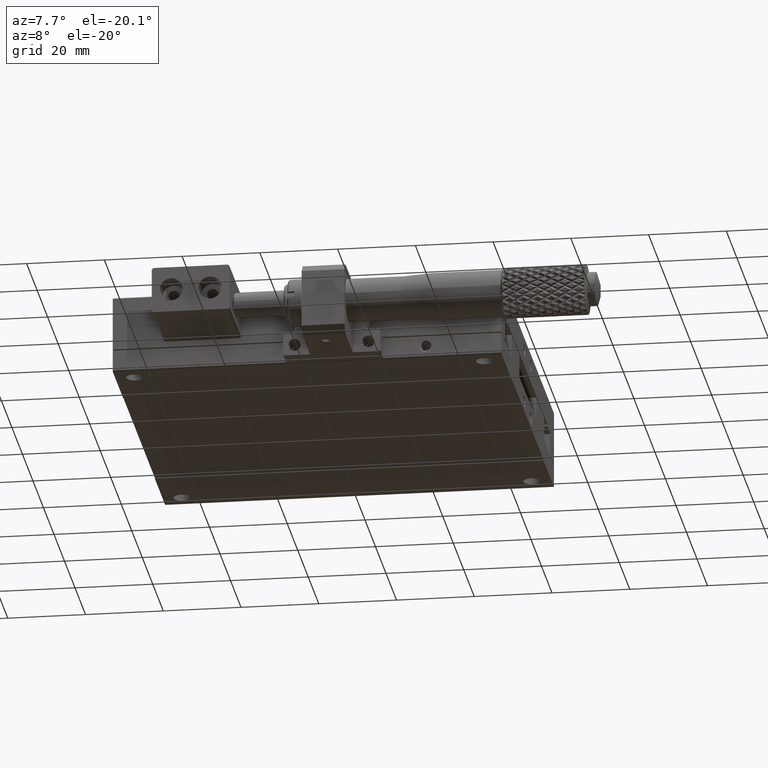
[diagram: clean part render]
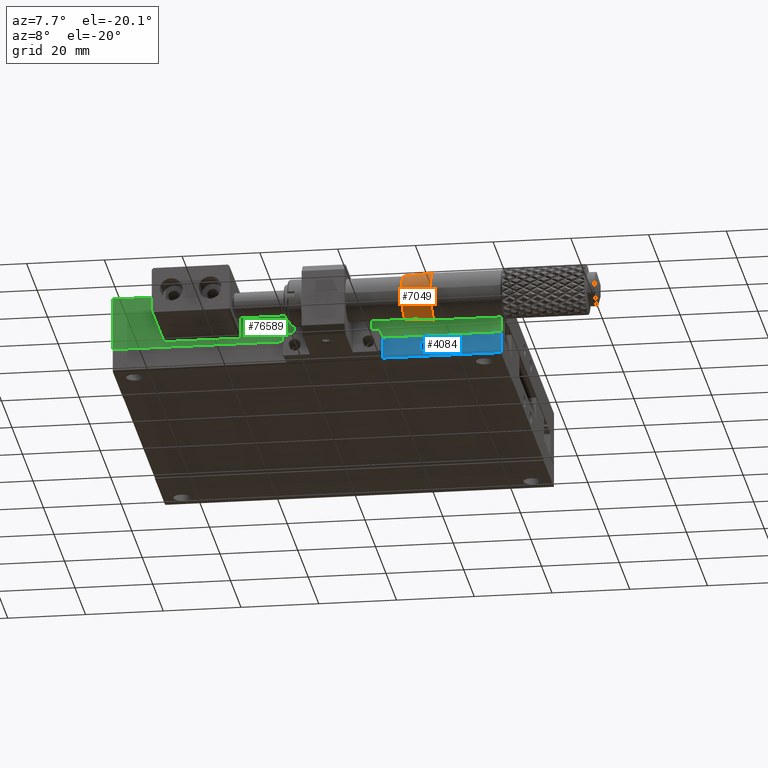
[diagram: same view with three faces highlighted in distinct colors, each labeled with its STEP entity id]
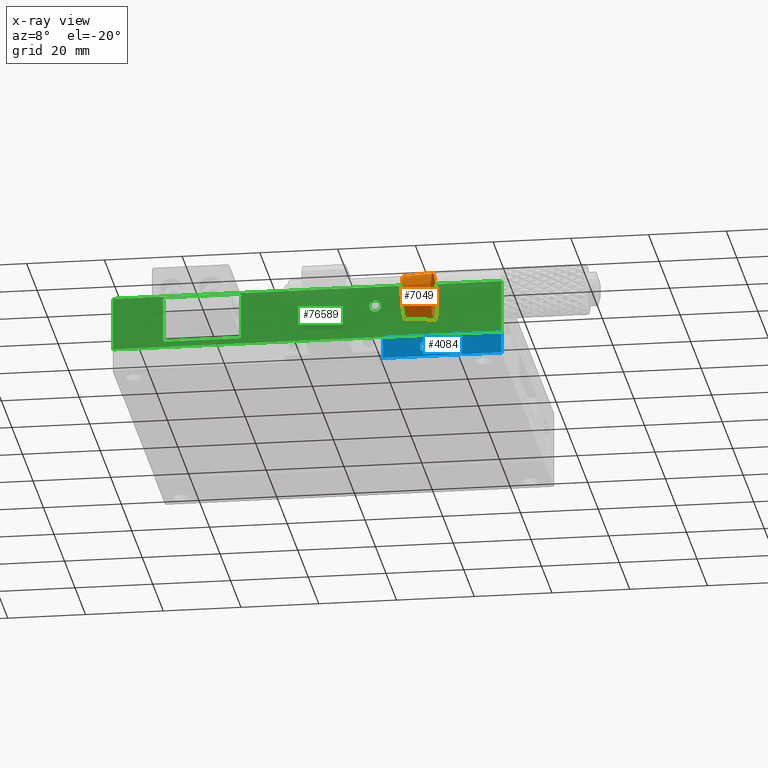
[diagram: x-ray of the same camera — body ghosted, the three highlighted faces saturated]
A machine part, auxiliary view with three faces highlighted in distinct colors.
The next image is the same camera in x-ray (body ghosted, the three faces saturated) — at least one of them is partly hidden behind the body in this view.
Their STEP definitions:

[orange] entity #7049 — the highlighted conical surface has half-angle 3.814 deg.
#596 = DIRECTION ( 'NONE',  ( 1.000000000000000000, 0.000000000000000000, 0.000000000000000000 ) ) ;
#7049 = ADVANCED_FACE ( 'NONE', ( #56556, #44701 ), #25448, .T. ) ;
#7160 = CIRCLE ( 'NONE', #33280, 6.000000000000005329 ) ;
#14877 = EDGE_CURVE ( 'NONE', #69432, #69432, #7160, .T. ) ;
#23201 = DIRECTION ( 'NONE',  ( 0.000000000000000000, 1.000000000000000000, 0.000000000000000000 ) ) ;
#25448 = CONICAL_SURFACE ( 'NONE', #56698, 6.000000000170802927, 0.06656816379978104659 ) ;
#26193 = CARTESIAN_POINT ( 'NONE',  ( 34.50028554974600326, -70.50000000000004263, 11.00000000000000000 ) ) ;
#27686 = VERTEX_POINT ( 'NONE', #46059 ) ;
#28673 = ORIENTED_EDGE ( 'NONE', *, *, #41103, .T. ) ;
#31642 = CARTESIAN_POINT ( 'NONE',  ( 34.50028554961136251, -64.50000000000004263, 11.00000000000000000 ) ) ;
#33280 = AXIS2_PLACEMENT_3D ( 'NONE', #44561, #69463, #41244 ) ;
#33834 = DIRECTION ( 'NONE',  ( 1.000000000000000000, 6.123233995736759873E-17, 0.000000000000000000 ) ) ;
#40191 = CIRCLE ( 'NONE', #74157, 5.499999999997888800 ) ;
#41103 = EDGE_CURVE ( 'NONE', #27686, #27686, #40191, .T. ) ;
#41244 = DIRECTION ( 'NONE',  ( 0.000000000000000000, -1.000000000000000000, 0.000000000000000000 ) ) ;
#44561 = CARTESIAN_POINT ( 'NONE',  ( 34.50028554974600326, -64.50000000000004263, 11.00000000000000000 ) ) ;
#44701 = FACE_OUTER_BOUND ( 'NONE', #52043, .T. ) ;
#46059 = CARTESIAN_POINT ( 'NONE',  ( 27.00028554973187056, -59.00000000000215294, 11.00000000000000000 ) ) ;
#50039 = DIRECTION ( 'NONE',  ( 0.000000000000000000, 0.000000000000000000, -1.000000000000000000 ) ) ;
#52043 = EDGE_LOOP ( 'NONE', ( #65965 ) ) ;
#56556 = FACE_BOUND ( 'NONE', #66380, .T. ) ;
#56698 = AXIS2_PLACEMENT_3D ( 'NONE', #31642, #596, #50039 ) ;
#65965 = ORIENTED_EDGE ( 'NONE', *, *, #14877, .F. ) ;
#66380 = EDGE_LOOP ( 'NONE', ( #28673 ) ) ;
#69432 = VERTEX_POINT ( 'NONE', #26193 ) ;
#69463 = DIRECTION ( 'NONE',  ( 1.000000000000000000, 6.123233995736759873E-17, -0.000000000000000000 ) ) ;
#74157 = AXIS2_PLACEMENT_3D ( 'NONE', #77970, #33834, #23201 ) ;
#77970 = CARTESIAN_POINT ( 'NONE',  ( 27.00028554973187056, -64.50000000000004263, 11.00000000000000000 ) ) ;

[blue] entity #4084 — the highlighted planar face has unit normal (-0, 1, 0).
#964 = CARTESIAN_POINT ( 'NONE',  ( 30.50000000000000000, -49.99999999990905053, 3.000000000000009770 ) ) ;
#1626 = VERTEX_POINT ( 'NONE', #40723 ) ;
#2072 = AXIS2_PLACEMENT_3D ( 'NONE', #964, #44658, #33634 ) ;
#2134 = PLANE ( 'NONE',  #54215 ) ;
#3488 = DIRECTION ( 'NONE',  ( -1.000000000000000000, -0.000000000000000000, -0.000000000000000000 ) ) ;
#4084 = ADVANCED_FACE ( 'NONE', ( #58067, #58479 ), #2134, .F. ) ;
#4745 = EDGE_CURVE ( 'NONE', #46455, #1626, #59415, .T. ) ;
#8268 = DIRECTION ( 'NONE',  ( -0.000000000000000000, 1.000000000000000000, 0.000000000000000000 ) ) ;
#8415 = VERTEX_POINT ( 'NONE', #69688 ) ;
#8685 = EDGE_CURVE ( 'NONE', #8415, #33235, #70219, .T. ) ;
#11338 = EDGE_LOOP ( 'NONE', ( #41385 ) ) ;
#11899 = ORIENTED_EDGE ( 'NONE', *, *, #8685, .T. ) ;
#13903 = CARTESIAN_POINT ( 'NONE',  ( 50.00000000000000000, -50.00000000000000000, 5.700000000000009948 ) ) ;
#15265 = VECTOR ( 'NONE', #3488, 1000.000000000000000 ) ;
#20965 = EDGE_CURVE ( 'NONE', #1626, #31213, #70210, .T. ) ;
#22817 = DIRECTION ( 'NONE',  ( -0.000000000000000000, -0.000000000000000000, 1.000000000000000000 ) ) ;
#26152 = DIRECTION ( 'NONE',  ( -1.000000000000000000, -0.000000000000000000, -0.000000000000000000 ) ) ;
#29186 = CARTESIAN_POINT ( 'NONE',  ( 50.00000000000000000, -50.00000000000000000, 0.3000000000000294098 ) ) ;
#31213 = VERTEX_POINT ( 'NONE', #36594 ) ;
#31816 = CARTESIAN_POINT ( 'NONE',  ( 19.50000000000000355, -50.00000000000000000, 0.5000000000000299760 ) ) ;
#32922 = CARTESIAN_POINT ( 'NONE',  ( 50.00000000000000000, -50.00000000000000000, 0.3000000000000294098 ) ) ;
#33170 = CARTESIAN_POINT ( 'NONE',  ( 50.00000000000000000, -50.00000000000000000, 5.700000000000009948 ) ) ;
#33235 = VERTEX_POINT ( 'NONE', #42229 ) ;
#33399 = EDGE_CURVE ( 'NONE', #62781, #62781, #77797, .T. ) ;
#33634 = DIRECTION ( 'NONE',  ( -1.000000000000000000, 0.000000000000000000, 0.000000000000000000 ) ) ;
#36594 = CARTESIAN_POINT ( 'NONE',  ( 19.50000000000000355, -50.00000000000000000, 0.5000000000000307532 ) ) ;
#36616 = LINE ( 'NONE', #42354, #48166 ) ;
#40723 = CARTESIAN_POINT ( 'NONE',  ( 19.29999999999999716, -50.00000000000000000, 0.3000000000000302980 ) ) ;
#41385 = ORIENTED_EDGE ( 'NONE', *, *, #33399, .F. ) ;
#42229 = CARTESIAN_POINT ( 'NONE',  ( 19.50000000000000355, -50.00000000000000000, 5.700000000000009948 ) ) ;
#42354 = CARTESIAN_POINT ( 'NONE',  ( 50.00000000000000000, -50.00000000000000000, 5.700000000000009948 ) ) ;
#44489 = EDGE_CURVE ( 'NONE', #46455, #8415, #36616, .T. ) ;
#44658 = DIRECTION ( 'NONE',  ( 0.000000000000000000, -1.000000000000000000, 0.000000000000000000 ) ) ;
#46455 = VERTEX_POINT ( 'NONE', #32922 ) ;
#48166 = VECTOR ( 'NONE', #22817, 1000.000000000000000 ) ;
#49923 = VECTOR ( 'NONE', #57604, 1000.000000000000000 ) ;
#51367 = VECTOR ( 'NONE', #26152, 1000.000000000000000 ) ;
#52620 = EDGE_LOOP ( 'NONE', ( #71795, #73305, #53453, #76700, #11899 ) ) ;
#53453 = ORIENTED_EDGE ( 'NONE', *, *, #4745, .F. ) ;
#53693 = EDGE_CURVE ( 'NONE', #31213, #33235, #69444, .T. ) ;
#54215 = AXIS2_PLACEMENT_3D ( 'NONE', #33170, #8268, #64197 ) ;
#56562 = VECTOR ( 'NONE', #56735, 1000.000000000000000 ) ;
#56735 = DIRECTION ( 'NONE',  ( 0.7071067811865610064, -0.000000000000000000, 0.7071067811865340280 ) ) ;
#57604 = DIRECTION ( 'NONE',  ( -0.000000000000000000, -0.000000000000000000, 1.000000000000000000 ) ) ;
#58067 = FACE_OUTER_BOUND ( 'NONE', #52620, .T. ) ;
#58479 = FACE_BOUND ( 'NONE', #11338, .T. ) ;
#59415 = LINE ( 'NONE', #29186, #15265 ) ;
#62387 = CARTESIAN_POINT ( 'NONE',  ( 28.99999999995088373, -49.99999999990905053, 3.000000000000009770 ) ) ;
#62781 = VERTEX_POINT ( 'NONE', #62387 ) ;
#63327 = CARTESIAN_POINT ( 'NONE',  ( 19.50000000000000355, -50.00000000000000000, 5.700000000000009948 ) ) ;
#64197 = DIRECTION ( 'NONE',  ( 1.000000000000000000, 0.000000000000000000, 0.000000000000000000 ) ) ;
#69444 = LINE ( 'NONE', #63327, #49923 ) ;
#69688 = CARTESIAN_POINT ( 'NONE',  ( 50.00000000000000000, -50.00000000000000000, 5.700000000000009948 ) ) ;
#70210 = LINE ( 'NONE', #31816, #56562 ) ;
#70219 = LINE ( 'NONE', #13903, #51367 ) ;
#71795 = ORIENTED_EDGE ( 'NONE', *, *, #53693, .F. ) ;
#73305 = ORIENTED_EDGE ( 'NONE', *, *, #20965, .F. ) ;
#76700 = ORIENTED_EDGE ( 'NONE', *, *, #44489, .T. ) ;
#77797 = CIRCLE ( 'NONE', #2072, 1.500000000049114934 ) ;

[green] entity #76589 — the highlighted planar face has unit normal (0, -1, 0).
#251 = CARTESIAN_POINT ( 'NONE',  ( -50.00000000000000000, -50.00000000000000000, 6.000000000000000000 ) ) ;
#555 = EDGE_CURVE ( 'NONE', #75678, #25751, #34847, .T. ) ;
#1201 = EDGE_LOOP ( 'NONE', ( #49271, #78222, #60644, #48780 ) ) ;
#2048 = EDGE_CURVE ( 'NONE', #36295, #8788, #51629, .T. ) ;
#2732 = ORIENTED_EDGE ( 'NONE', *, *, #2048, .T. ) ;
#2803 = FACE_OUTER_BOUND ( 'NONE', #1201, .T. ) ;
#5868 = VECTOR ( 'NONE', #27536, 1000.000000000000000 ) ;
#6609 = EDGE_LOOP ( 'NONE', ( #21543, #52737, #2732, #13297, #26542, #27043, #21228, #35924 ) ) ;
#8025 = DIRECTION ( 'NONE',  ( -1.000000000000000000, 0.000000000000000000, 0.000000000000000000 ) ) ;
#8327 = DIRECTION ( 'NONE',  ( -0.7071067811865500152, 0.000000000000000000, -0.7071067811865450192 ) ) ;
#8788 = VERTEX_POINT ( 'NONE', #52653 ) ;
#8944 = DIRECTION ( 'NONE',  ( 0.000000000000000000, -1.000000000000000000, 0.000000000000000000 ) ) ;
#9134 = CARTESIAN_POINT ( 'NONE',  ( -50.00000000000000000, -50.00000000000000000, 19.50000000000000000 ) ) ;
#10008 = EDGE_CURVE ( 'NONE', #25751, #54725, #78179, .T. ) ;
#10983 = CARTESIAN_POINT ( 'NONE',  ( -17.42000000000000526, -50.00000000000000000, 19.50000000000000000 ) ) ;
#11335 = DIRECTION ( 'NONE',  ( 1.000000000000000000, -0.000000000000000000, -0.000000000000000000 ) ) ;
#13297 = ORIENTED_EDGE ( 'NONE', *, *, #25850, .T. ) ;
#13781 = CARTESIAN_POINT ( 'NONE',  ( -17.00000000000000000, -50.00000000000000000, 19.07999999999999829 ) ) ;
#14051 = CARTESIAN_POINT ( 'NONE',  ( -50.00000000000000000, -50.00000000000000000, 6.000000000000000000 ) ) ;
#14566 = VERTEX_POINT ( 'NONE', #25142 ) ;
#15023 = LINE ( 'NONE', #75558, #50359 ) ;
#15101 = CARTESIAN_POINT ( 'NONE',  ( -50.00000000000000000, -50.00000000000000000, 19.69999999999998863 ) ) ;
#15366 = CARTESIAN_POINT ( 'NONE',  ( -50.00000000000000000, -50.00000000000000000, 19.69999999999999218 ) ) ;
#16878 = EDGE_CURVE ( 'NONE', #75204, #75204, #26856, .T. ) ;
#16881 = DIRECTION ( 'NONE',  ( 0.7071067811865510144, 0.000000000000000000, 0.7071067811865441310 ) ) ;
#18074 = DIRECTION ( 'NONE',  ( -0.000000000000000000, 1.000000000000000000, -0.000000000000000000 ) ) ;
#19060 = EDGE_CURVE ( 'NONE', #76900, #80878, #49267, .T. ) ;
#19532 = VECTOR ( 'NONE', #70474, 1000.000000000000000 ) ;
#19878 = CARTESIAN_POINT ( 'NONE',  ( -37.00000000000000711, -50.00000000000000000, 19.07999999999999829 ) ) ;
#20610 = CARTESIAN_POINT ( 'NONE',  ( -17.42000000000000526, -50.00000000000000000, 7.500000000000000000 ) ) ;
#20696 = EDGE_CURVE ( 'NONE', #54725, #72110, #70788, .T. ) ;
#21228 = ORIENTED_EDGE ( 'NONE', *, *, #10008, .T. ) ;
#21543 = ORIENTED_EDGE ( 'NONE', *, *, #76816, .T. ) ;
#21960 = EDGE_CURVE ( 'NONE', #34277, #75678, #44741, .T. ) ;
#22969 = VECTOR ( 'NONE', #64367, 999.9999999999998863 ) ;
#25142 = CARTESIAN_POINT ( 'NONE',  ( -17.00000000000000000, -50.00000000000000000, 19.07999999999999829 ) ) ;
#25751 = VERTEX_POINT ( 'NONE', #19878 ) ;
#25850 = EDGE_CURVE ( 'NONE', #8788, #34277, #32526, .T. ) ;
#26035 = CARTESIAN_POINT ( 'NONE',  ( -17.00000000000000000, -50.00000000000000000, 7.919999999999999929 ) ) ;
#26542 = ORIENTED_EDGE ( 'NONE', *, *, #21960, .T. ) ;
#26682 = LINE ( 'NONE', #58083, #60371 ) ;
#26856 = CIRCLE ( 'NONE', #73751, 1.500000000048656856 ) ;
#27043 = ORIENTED_EDGE ( 'NONE', *, *, #555, .T. ) ;
#27222 = CARTESIAN_POINT ( 'NONE',  ( -37.00000000000000711, -50.00000000000000000, 7.919999999999999929 ) ) ;
#27536 = DIRECTION ( 'NONE',  ( -0.000000000000000000, -0.000000000000000000, 1.000000000000000000 ) ) ;
#30610 = VECTOR ( 'NONE', #8025, 1000.000000000000000 ) ;
#30961 = LINE ( 'NONE', #55878, #32955 ) ;
#32526 = LINE ( 'NONE', #57828, #30610 ) ;
#32955 = VECTOR ( 'NONE', #70561, 1000.000000000000000 ) ;
#33028 = FACE_BOUND ( 'NONE', #49158, .T. ) ;
#33074 = VECTOR ( 'NONE', #71999, 1000.000000000000000 ) ;
#33182 = DIRECTION ( 'NONE',  ( 0.000000000000000000, 0.000000000000000000, -1.000000000000000000 ) ) ;
#33637 = CARTESIAN_POINT ( 'NONE',  ( -37.00000000000000711, -50.00000000000000000, 19.69999999999998863 ) ) ;
#34277 = VERTEX_POINT ( 'NONE', #39972 ) ;
#34847 = LINE ( 'NONE', #33637, #5868 ) ;
#35924 = ORIENTED_EDGE ( 'NONE', *, *, #20696, .T. ) ;
#36295 = VERTEX_POINT ( 'NONE', #26035 ) ;
#38157 = VECTOR ( 'NONE', #16881, 999.9999999999998863 ) ;
#38494 = VECTOR ( 'NONE', #8327, 1000.000000000000000 ) ;
#39317 = CARTESIAN_POINT ( 'NONE',  ( -37.00000000000000711, -50.00000000000000000, 7.919999999999999929 ) ) ;
#39972 = CARTESIAN_POINT ( 'NONE',  ( -36.57999999999999829, -50.00000000000000000, 7.500000000000000000 ) ) ;
#40340 = DIRECTION ( 'NONE',  ( -1.000000000000000000, 0.000000000000000000, 0.000000000000000000 ) ) ;
#42522 = AXIS2_PLACEMENT_3D ( 'NONE', #15101, #8944, #40340 ) ;
#42549 = CARTESIAN_POINT ( 'NONE',  ( 17.50000000000000000, -49.99999999990905053, 14.50000000000000000 ) ) ;
#43108 = DIRECTION ( 'NONE',  ( 0.000000000000000000, 0.000000000000000000, -1.000000000000000000 ) ) ;
#44741 = LINE ( 'NONE', #27222, #19532 ) ;
#45659 = VERTEX_POINT ( 'NONE', #62920 ) ;
#46110 = VECTOR ( 'NONE', #43108, 1000.000000000000000 ) ;
#48780 = ORIENTED_EDGE ( 'NONE', *, *, #77399, .F. ) ;
#49158 = EDGE_LOOP ( 'NONE', ( #74160 ) ) ;
#49267 = LINE ( 'NONE', #62691, #46110 ) ;
#49271 = ORIENTED_EDGE ( 'NONE', *, *, #19060, .T. ) ;
#50359 = VECTOR ( 'NONE', #64389, 1000.000000000000000 ) ;
#51629 = LINE ( 'NONE', #20610, #38494 ) ;
#52653 = CARTESIAN_POINT ( 'NONE',  ( -17.42000000000000526, -50.00000000000000000, 7.500000000000000000 ) ) ;
#52737 = ORIENTED_EDGE ( 'NONE', *, *, #55156, .T. ) ;
#54525 = CARTESIAN_POINT ( 'NONE',  ( 50.00000000000000000, -50.00000000000000000, 19.69999999999999218 ) ) ;
#54725 = VERTEX_POINT ( 'NONE', #66457 ) ;
#55156 = EDGE_CURVE ( 'NONE', #14566, #36295, #26682, .T. ) ;
#55878 = CARTESIAN_POINT ( 'NONE',  ( 50.00000000000000000, -50.00000000000000000, 20.00000000000000000 ) ) ;
#57828 = CARTESIAN_POINT ( 'NONE',  ( -50.00000000000000000, -50.00000000000000000, 7.500000000000000000 ) ) ;
#57925 = FACE_BOUND ( 'NONE', #6609, .T. ) ;
#58083 = CARTESIAN_POINT ( 'NONE',  ( -17.00000000000000000, -50.00000000000000000, 19.69999999999998863 ) ) ;
#59099 = EDGE_CURVE ( 'NONE', #71443, #45659, #30961, .T. ) ;
#60371 = VECTOR ( 'NONE', #33182, 1000.000000000000000 ) ;
#60644 = ORIENTED_EDGE ( 'NONE', *, *, #59099, .F. ) ;
#61017 = EDGE_CURVE ( 'NONE', #80878, #45659, #68058, .T. ) ;
#62691 = CARTESIAN_POINT ( 'NONE',  ( -50.00000000000000000, -50.00000000000000000, 20.00000000000000000 ) ) ;
#62920 = CARTESIAN_POINT ( 'NONE',  ( 50.00000000000000000, -50.00000000000000000, 6.000000000000000000 ) ) ;
#63561 = LINE ( 'NONE', #13781, #22969 ) ;
#64050 = PLANE ( 'NONE',  #42522 ) ;
#64303 = VECTOR ( 'NONE', #11335, 1000.000000000000000 ) ;
#64367 = DIRECTION ( 'NONE',  ( 0.7071067811865510144, 0.000000000000000000, -0.7071067811865441310 ) ) ;
#64389 = DIRECTION ( 'NONE',  ( 1.000000000000000000, 0.000000000000000000, 0.000000000000000000 ) ) ;
#65878 = CARTESIAN_POINT ( 'NONE',  ( -36.57999999999999829, -50.00000000000000000, 19.50000000000000000 ) ) ;
#66457 = CARTESIAN_POINT ( 'NONE',  ( -36.57999999999999829, -50.00000000000000000, 19.50000000000000000 ) ) ;
#67477 = DIRECTION ( 'NONE',  ( -1.000000000000000000, 0.000000000000000000, 0.000000000000000000 ) ) ;
#68058 = LINE ( 'NONE', #251, #64303 ) ;
#69847 = CARTESIAN_POINT ( 'NONE',  ( 15.99999999995134559, -49.99999999990905053, 14.50000000000000000 ) ) ;
#70474 = DIRECTION ( 'NONE',  ( -0.7071067811865500152, -0.000000000000000000, 0.7071067811865450192 ) ) ;
#70561 = DIRECTION ( 'NONE',  ( 0.000000000000000000, 0.000000000000000000, -1.000000000000000000 ) ) ;
#70788 = LINE ( 'NONE', #9134, #33074 ) ;
#71443 = VERTEX_POINT ( 'NONE', #54525 ) ;
#71999 = DIRECTION ( 'NONE',  ( 1.000000000000000000, -0.000000000000000000, -0.000000000000000000 ) ) ;
#72110 = VERTEX_POINT ( 'NONE', #10983 ) ;
#73751 = AXIS2_PLACEMENT_3D ( 'NONE', #42549, #18074, #67477 ) ;
#74160 = ORIENTED_EDGE ( 'NONE', *, *, #16878, .T. ) ;
#75204 = VERTEX_POINT ( 'NONE', #69847 ) ;
#75558 = CARTESIAN_POINT ( 'NONE',  ( -50.00000000000000000, -50.00000000000000000, 19.69999999999999929 ) ) ;
#75678 = VERTEX_POINT ( 'NONE', #39317 ) ;
#76589 = ADVANCED_FACE ( 'NONE', ( #2803, #33028, #57925 ), #64050, .T. ) ;
#76816 = EDGE_CURVE ( 'NONE', #72110, #14566, #63561, .T. ) ;
#76900 = VERTEX_POINT ( 'NONE', #15366 ) ;
#77399 = EDGE_CURVE ( 'NONE', #76900, #71443, #15023, .T. ) ;
#78179 = LINE ( 'NONE', #65878, #38157 ) ;
#78222 = ORIENTED_EDGE ( 'NONE', *, *, #61017, .T. ) ;
#80878 = VERTEX_POINT ( 'NONE', #14051 ) ;